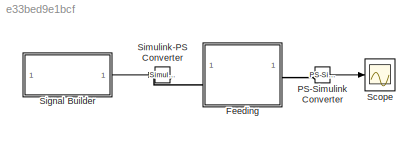
MODEL slx_e33bed9e1bcf
KIND model
CONFIG AbsTol = auto
CONFIG EnableMultiTasking = off
CONFIG FixedStep = auto
CONFIG MaxStep = auto
CONFIG MinStep = auto
CONFIG RelTol = 1e-3
CONFIG SampleTimeConstraint = Unconstrained
CONFIG SolverName = VariableStepAuto
CONFIG StartTime = 0.0
CONFIG StopTime = 10.0
WORKSPACE source: external: MATLAB File  (data not in archive)
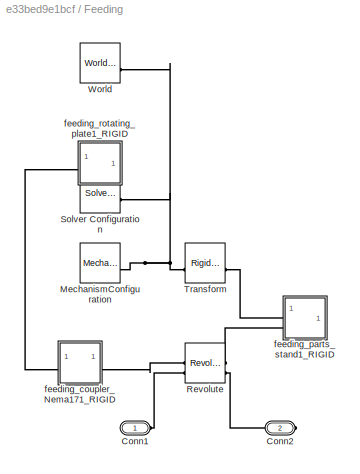
BLOCK [SubSystem] Feeding
BLOCK [PMIOPort] Feeding/Conn1
  Side = Left
BLOCK [PMIOPort] Feeding/Conn2
  Port = 2
  Side = Right
BLOCK [Reference] Feeding/MechanismConfiguration  REF=sm_lib/Utilities/Mechanism
Configuration
  SourceBlock = sm_lib/Utilities/Mechanism\nConfiguration
  SourceType = Mechanism\nConfiguration
BLOCK [Reference] Feeding/Revolute  REF=sm_lib/Joints/Revolute Joint
  SourceBlock = sm_lib/Joints/Revolute Joint
  SourceType = Revolute Joint
BLOCK [Reference] Feeding/Solver Configuration  REF=nesl_utility/Solver
Configuration
  SourceBlock = nesl_utility/Solver\nConfiguration
  SourceType = Solver\nConfiguration
BLOCK [Reference] Feeding/Transform  REF=sm_lib/Frames and
Transforms/Rigid
Transform
  SourceBlock = sm_lib/Frames and\nTransforms/Rigid\nTransform
  SourceType = Rigid\nTransform
BLOCK [Reference] Feeding/World  REF=sm_lib/Frames and
Transforms/World Frame
  SourceBlock = sm_lib/Frames and\nTransforms/World Frame
  SourceType = World Frame
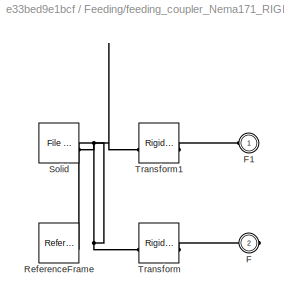
BLOCK [SubSystem] Feeding/feeding_coupler_Nema171_RIGID
BLOCK [PMIOPort] Feeding/feeding_coupler_Nema171_RIGID/F
  Port = 2
  Side = Right
BLOCK [PMIOPort] Feeding/feeding_coupler_Nema171_RIGID/F1
  Side = Left
BLOCK [Reference] Feeding/feeding_coupler_Nema171_RIGID/ReferenceFrame  REF=sm_lib/Frames and
Transforms/Reference
Frame
  SourceBlock = sm_lib/Frames and\nTransforms/Reference\nFrame
  SourceType = Reference\nFrame
BLOCK [Reference] Feeding/feeding_coupler_Nema171_RIGID/Solid  REF=sm_lib/Body Elements/File Solid
  SourceBlock = sm_lib/Body Elements/File Solid
  SourceType = File Solid
BLOCK [Reference] Feeding/feeding_coupler_Nema171_RIGID/Transform  REF=sm_lib/Frames and
Transforms/Rigid
Transform
  SourceBlock = sm_lib/Frames and\nTransforms/Rigid\nTransform
  SourceType = Rigid\nTransform
BLOCK [Reference] Feeding/feeding_coupler_Nema171_RIGID/Transform1  REF=sm_lib/Frames and
Transforms/Rigid
Transform
  SourceBlock = sm_lib/Frames and\nTransforms/Rigid\nTransform
  SourceType = Rigid\nTransform
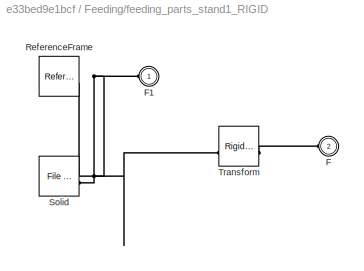
BLOCK [SubSystem] Feeding/feeding_parts_stand1_RIGID
BLOCK [PMIOPort] Feeding/feeding_parts_stand1_RIGID/F
  Port = 2
  Side = Left
BLOCK [PMIOPort] Feeding/feeding_parts_stand1_RIGID/F1
  Side = Left
BLOCK [Reference] Feeding/feeding_parts_stand1_RIGID/ReferenceFrame  REF=sm_lib/Frames and
Transforms/Reference
Frame
  SourceBlock = sm_lib/Frames and\nTransforms/Reference\nFrame
  SourceType = Reference\nFrame
BLOCK [Reference] Feeding/feeding_parts_stand1_RIGID/Solid  REF=sm_lib/Body Elements/File Solid
  SourceBlock = sm_lib/Body Elements/File Solid
  SourceType = File Solid
BLOCK [Reference] Feeding/feeding_parts_stand1_RIGID/Transform  REF=sm_lib/Frames and
Transforms/Rigid
Transform
  SourceBlock = sm_lib/Frames and\nTransforms/Rigid\nTransform
  SourceType = Rigid\nTransform
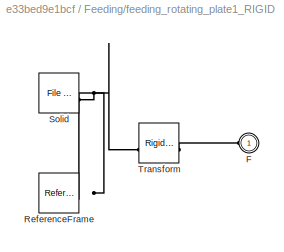
BLOCK [SubSystem] Feeding/feeding_rotating_plate1_RIGID
BLOCK [PMIOPort] Feeding/feeding_rotating_plate1_RIGID/F
  Side = Left
BLOCK [Reference] Feeding/feeding_rotating_plate1_RIGID/ReferenceFrame  REF=sm_lib/Frames and
Transforms/Reference
Frame
  SourceBlock = sm_lib/Frames and\nTransforms/Reference\nFrame
  SourceType = Reference\nFrame
BLOCK [Reference] Feeding/feeding_rotating_plate1_RIGID/Solid  REF=sm_lib/Body Elements/File Solid
  SourceBlock = sm_lib/Body Elements/File Solid
  SourceType = File Solid
BLOCK [Reference] Feeding/feeding_rotating_plate1_RIGID/Transform  REF=sm_lib/Frames and
Transforms/Rigid
Transform
  SourceBlock = sm_lib/Frames and\nTransforms/Rigid\nTransform
  SourceType = Rigid\nTransform
BLOCK [Reference] PS-Simulink Converter  REF=nesl_utility/PS-Simulink
Converter
  SourceBlock = nesl_utility/PS-Simulink\nConverter
  SourceType = PS-Simulink\nConverter
BLOCK [Scope] Scope
  Floating = off
  NumInputPorts = 1
  ScopeSpecificationString = Simulink.scopes.TimeScopeBlockCfg('CurrentConfiguration', extmgr.ConfigurationSet(extmgr.Configuration('Core','General UI',true),extmgr.Configuration('Core','Source UI',true),extmgr.Configuration('Sources','WiredSimulink',true),extmgr.Configuration('Visuals','Time Domain',true,'SerializedDisplays',{struct('MinYLimReal','-172.3266','MaxYLimReal','34.07143','YLabelReal','','MinYLimMag',' 0.00000','M...<+1393ch>
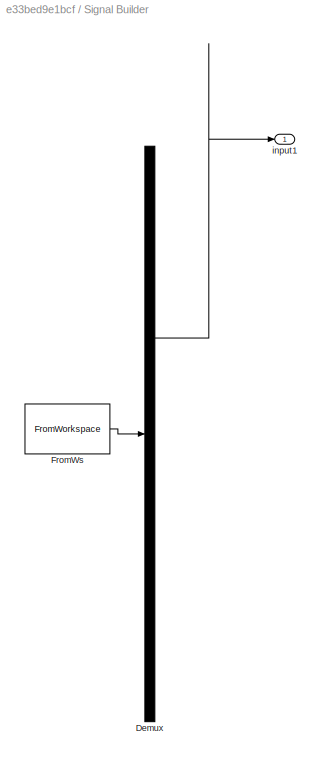
BLOCK [SubSystem] Signal Builder
  ClipboardFcn = sigbuilder_block('clipboard');
  CloseFcn = sigbuilder_block('close');
  ContinueFcn = sigbuilder_block('continue');
  CopyFcn = sigbuilder_block('copy');
  DeleteFcn = sigbuilder_block('delete');
  LoadFcn = sigbuilder_block('load');
  MaskHideContents = on
  ModelCloseFcn = sigbuilder_block('modelClose');
  NameChangeFcn = sigbuilder_block('namechange');
  OpenFcn = sigbuilder_block('open',[159 150.6 550.8 400.2 ]);
  PauseFcn = sigbuilder_block('pause');
  PreSaveFcn = sigbuilder_block('preSave');
  StartFcn = sigbuilder_block('start');
  StopFcn = sigbuilder_block('stop');
  Tag = STV Subsys
BLOCK [Demux] Signal Builder/Demux
  DisplayOption = none
  Outputs = 1
  Tag = STV Demux
BLOCK [FromWorkspace] Signal Builder/FromWs
  Tag = STV FromWs
  VariableName = tuvar
BLOCK [Outport] Signal Builder/input1
  Tag = STV Outport
BLOCK [Reference] Simulink-PS Converter  REF=nesl_utility/Simulink-PS
Converter
  SourceBlock = nesl_utility/Simulink-PS\nConverter
  SourceType = Simulink-PS\nConverter
LINE PS-Simulink Converter:1 -> Scope:1
LINE Signal Builder:1 -> Simulink-PS Converter:1
PLINE Feeding/Conn1:RConn1 -- Feeding/Revolute:LConn2
PLINE Feeding/Conn2:RConn1 -- Feeding/Revolute:RConn2
PNET net1: Feeding/MechanismConfiguration:RConn1 -- Feeding/Solver Configuration:RConn1 -- Feeding/Transform:LConn1 -- Feeding/World:RConn1
PLINE Feeding/Revolute:LConn1 -- Feeding/feeding_coupler_Nema171_RIGID:RConn1
PLINE Feeding/Revolute:RConn1 -- Feeding/feeding_parts_stand1_RIGID:LConn2
PLINE Feeding/Transform:RConn1 -- Feeding/feeding_parts_stand1_RIGID:LConn1
PLINE Feeding/feeding_coupler_Nema171_RIGID/F1:RConn1 -- Feeding/feeding_coupler_Nema171_RIGID/Transform1:RConn1
PLINE Feeding/feeding_coupler_Nema171_RIGID/F:RConn1 -- Feeding/feeding_coupler_Nema171_RIGID/Transform:RConn1
PNET net2: Feeding/feeding_coupler_Nema171_RIGID/ReferenceFrame:RConn1 -- Feeding/feeding_coupler_Nema171_RIGID/Solid:RConn1 -- Feeding/feeding_coupler_Nema171_RIGID/Transform1:LConn1 -- Feeding/feeding_coupler_Nema171_RIGID/Transform:LConn1
PLINE Feeding/feeding_coupler_Nema171_RIGID:LConn1 -- Feeding/feeding_rotating_plate1_RIGID:LConn1
PNET net3: Feeding/feeding_parts_stand1_RIGID/F1:RConn1 -- Feeding/feeding_parts_stand1_RIGID/ReferenceFrame:RConn1 -- Feeding/feeding_parts_stand1_RIGID/Solid:RConn1 -- Feeding/feeding_parts_stand1_RIGID/Transform:LConn1
PLINE Feeding/feeding_parts_stand1_RIGID/F:RConn1 -- Feeding/feeding_parts_stand1_RIGID/Transform:RConn1
PLINE Feeding/feeding_rotating_plate1_RIGID/F:RConn1 -- Feeding/feeding_rotating_plate1_RIGID/Transform:RConn1
PNET net4: Feeding/feeding_rotating_plate1_RIGID/ReferenceFrame:RConn1 -- Feeding/feeding_rotating_plate1_RIGID/Solid:RConn1 -- Feeding/feeding_rotating_plate1_RIGID/Transform:LConn1
PLINE Feeding:LConn1 -- Simulink-PS Converter:RConn1
PLINE Feeding:RConn1 -- PS-Simulink Converter:LConn1
note: PNET lines group multi-terminal physical nets as a canonical sorted terminal list (undirected conserving connections); 2-terminal nets keep the pairwise PLINE form
